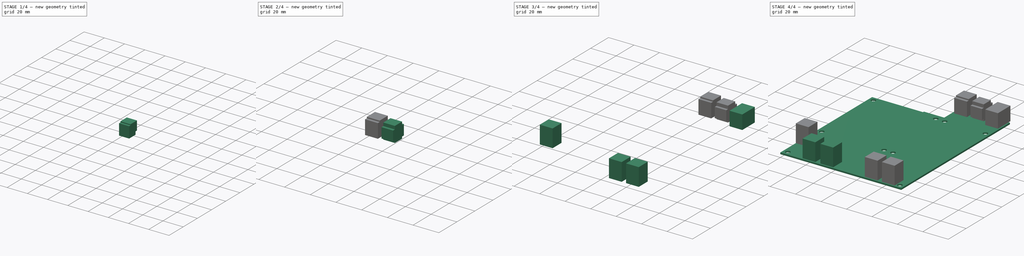
[diagram: build sequence overview — one tinted view per stage of 4, left to right]
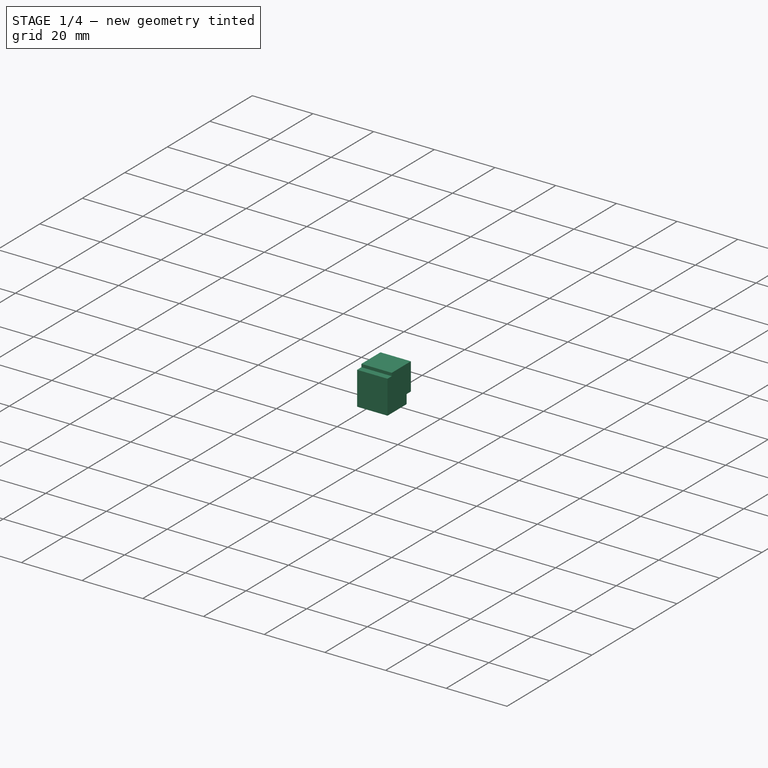
[diagram: stage 1 of 4 — iso view after this stage's code; geometry added in this stage tinted green]
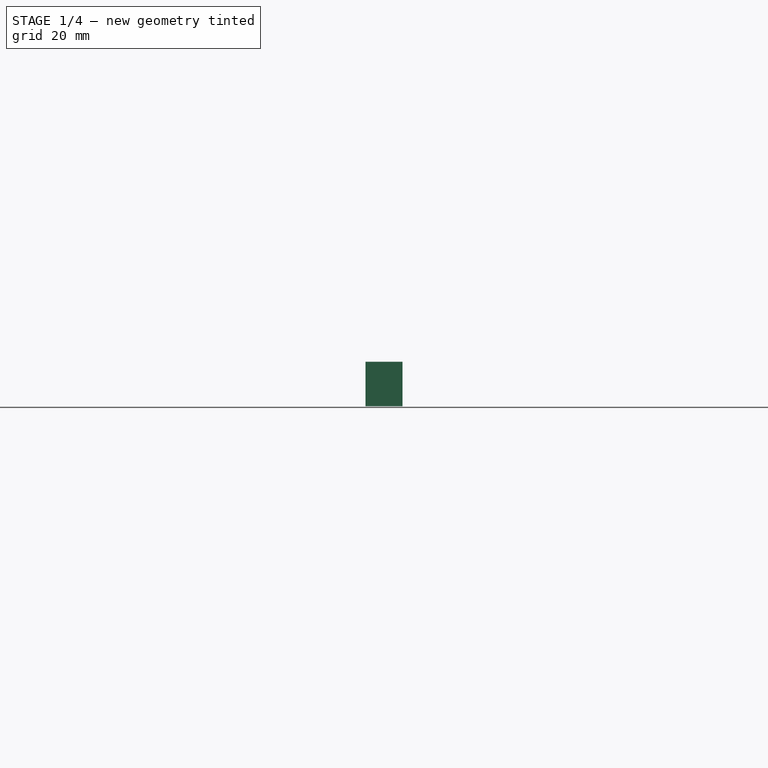
[diagram: stage 1 of 4 — front view after this stage's code; geometry added in this stage tinted green]
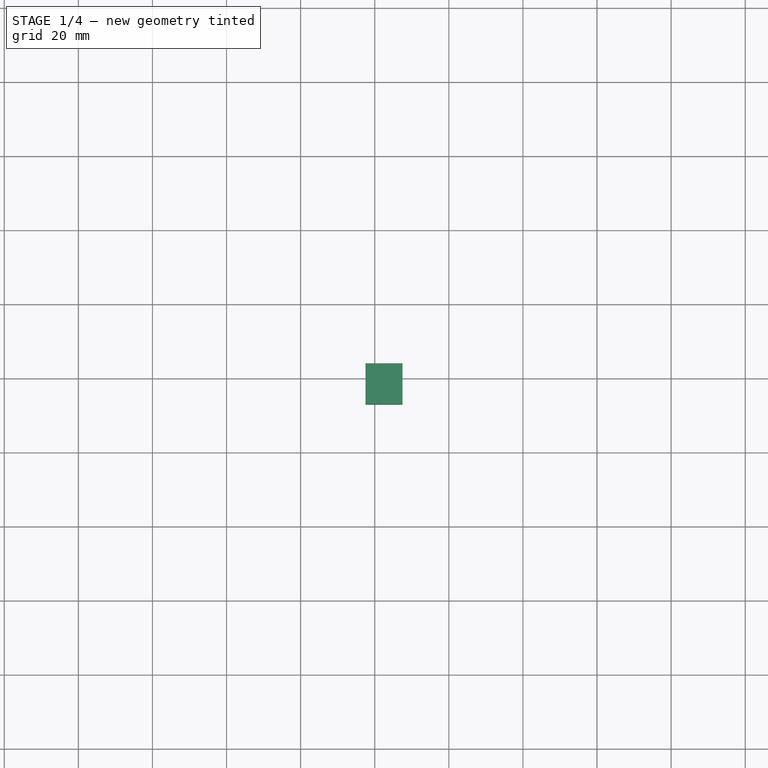
[diagram: stage 1 of 4 — top view after this stage's code; geometry added in this stage tinted green]
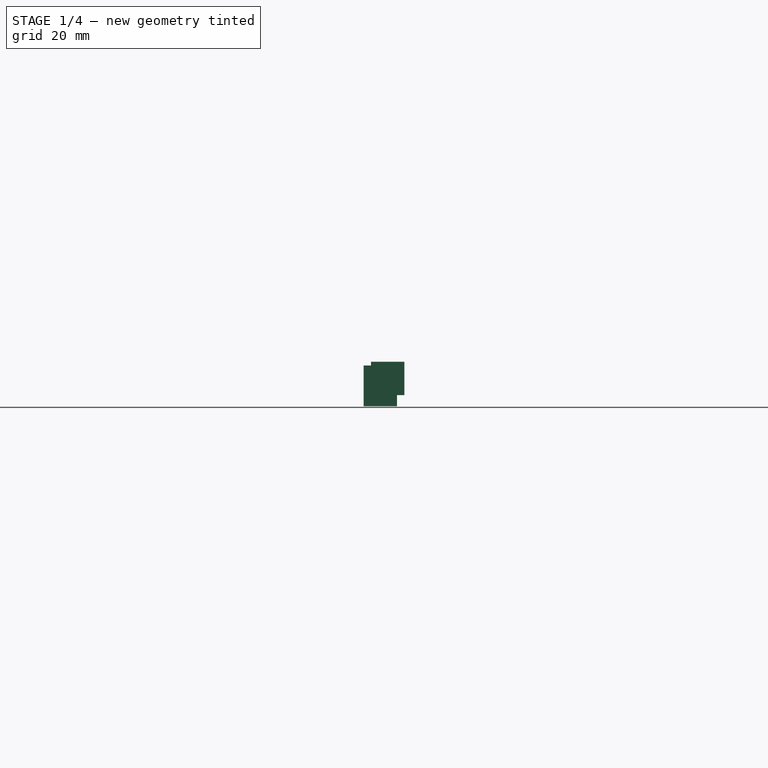
[diagram: stage 1 of 4 — right view after this stage's code; geometry added in this stage tinted green]
FCSTD DOCUMENT  (FreeCAD 0.16R6712 (Git))
Label: beocreate-board
License: All rights reserved
LicenseURL: http://en.wikipedia.org/wiki/All_rights_reserved
objects: Part::Box×10, Part::Fuse×2, Sketcher::SketchObject×1, PartDesign::Pad×1
note: 15 computed .brp shape members not serialized (recipe doc carries the construction recipe); baked Part::Feature solids carry a one-line shape summary decoded from their .brp

FEATURE [Part::Box] Box008  label="Würfel008"
  Height = 11
  Length = 10
  Width = 9
FEATURE [Part::Box] Box009  label="Würfel009"
  Height = 9
  Length = 10
  Placement = pos=(0,2,3) rot=(0,0,1;0rad)
  Width = 9
FEATURE [Part::Fuse] Fusion001  label="SPDIF1"
  Base = -> Box008
  Placement = pos=(57.5,113,0) rot=(0,0,1;0rad)
  Tool = -> Box009
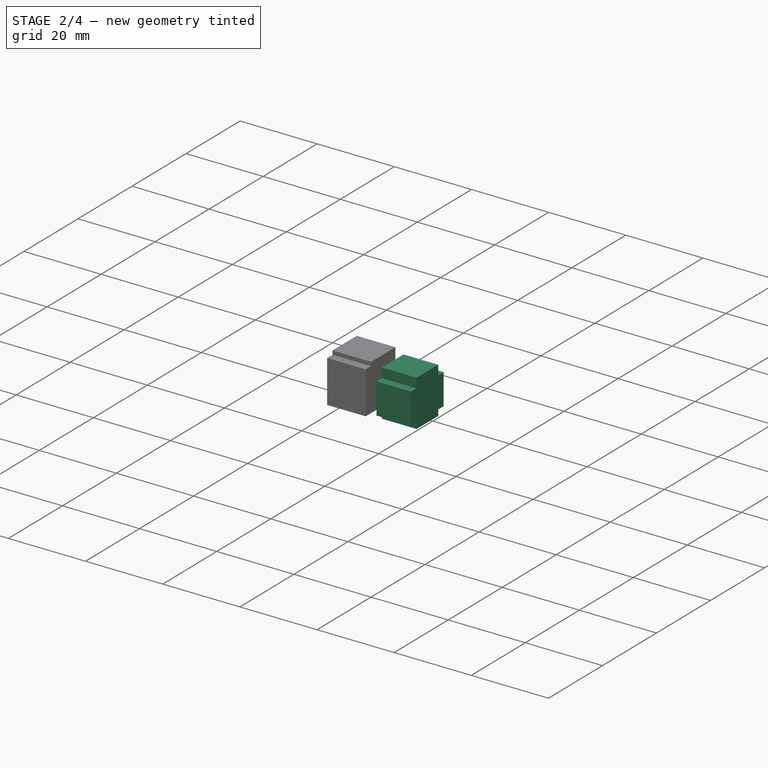
[diagram: stage 2 of 4 — iso view after this stage's code; geometry added in this stage tinted green]
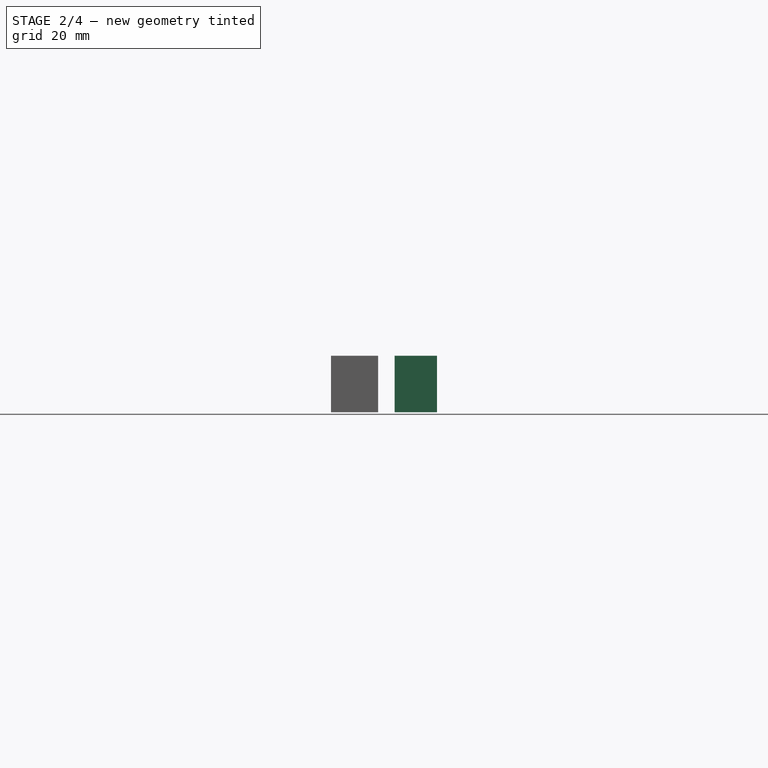
[diagram: stage 2 of 4 — front view after this stage's code; geometry added in this stage tinted green]
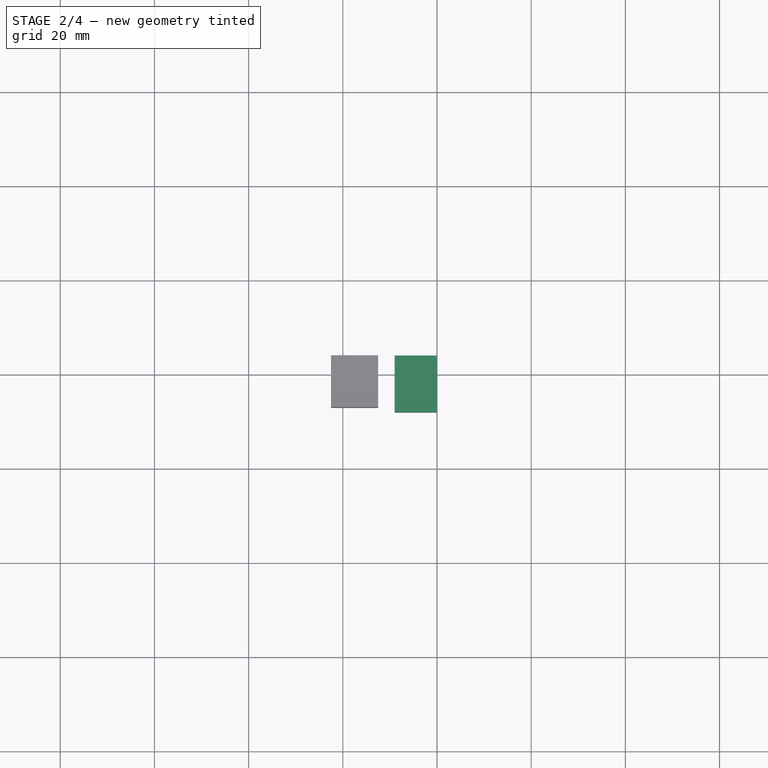
[diagram: stage 2 of 4 — top view after this stage's code; geometry added in this stage tinted green]
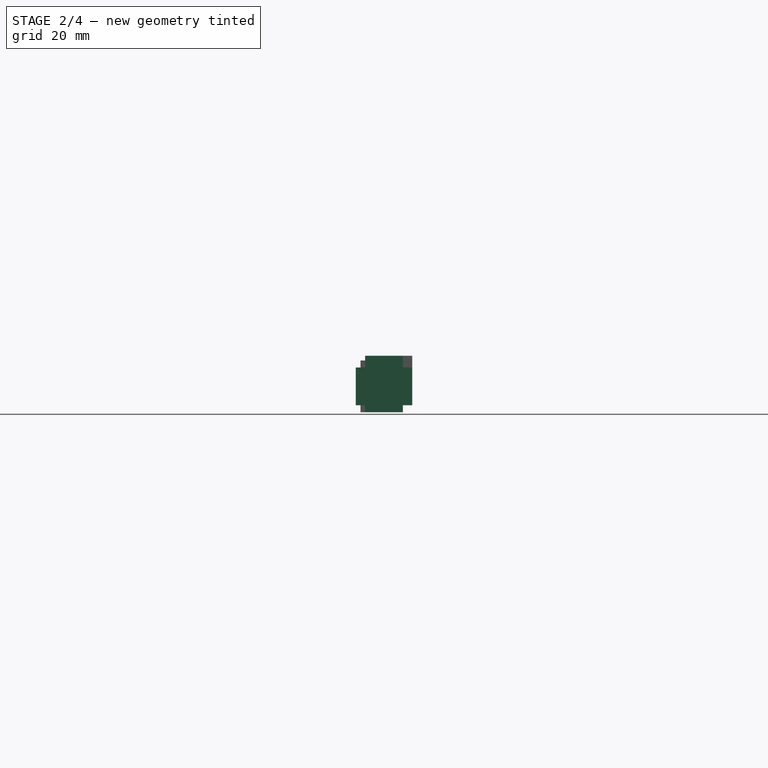
[diagram: stage 2 of 4 — right view after this stage's code; geometry added in this stage tinted green]
FEATURE [Part::Box] Box006  label="Würfel006"
  Height = 8
  Length = 9
  Placement = pos=(0,0,1.5) rot=(0,0,1;0rad)
  Width = 12
FEATURE [Part::Box] Box007  label="Würfel007"
  Height = 12
  Length = 9
  Placement = pos=(0,2,0) rot=(0,0,1;0rad)
  Width = 8
FEATURE [Part::Fuse] Fusion  label="SPDIF2"
  Base = -> Box006
  Placement = pos=(71,112,0) rot=(0,0,1;0rad)
  Tool = -> Box007
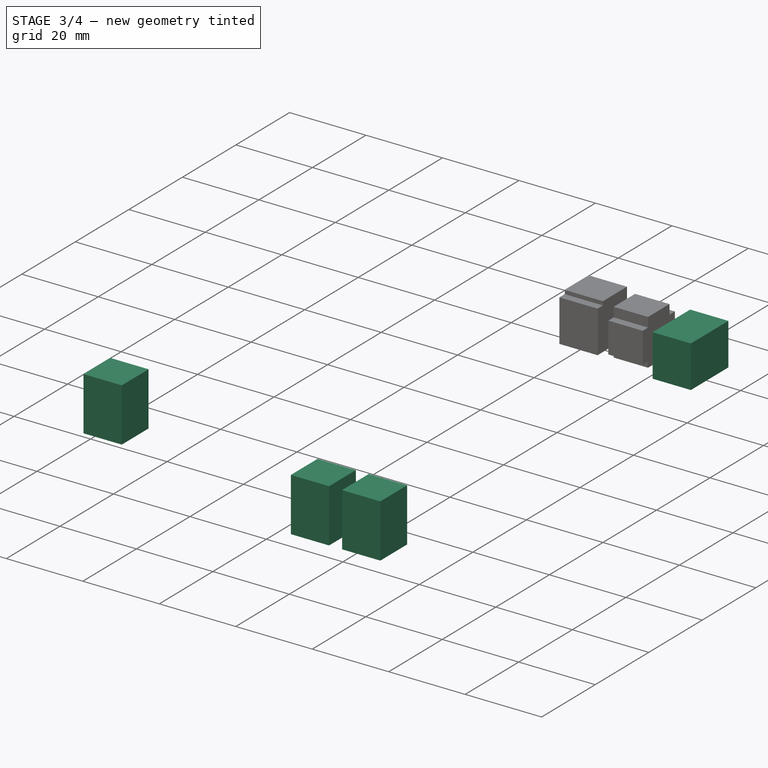
[diagram: stage 3 of 4 — iso view after this stage's code; geometry added in this stage tinted green]
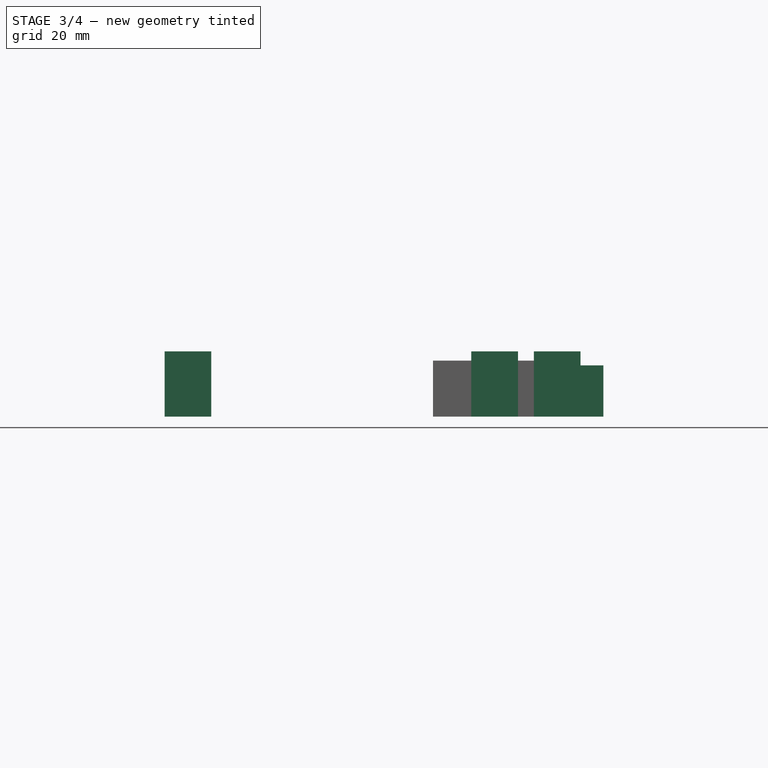
[diagram: stage 3 of 4 — front view after this stage's code; geometry added in this stage tinted green]
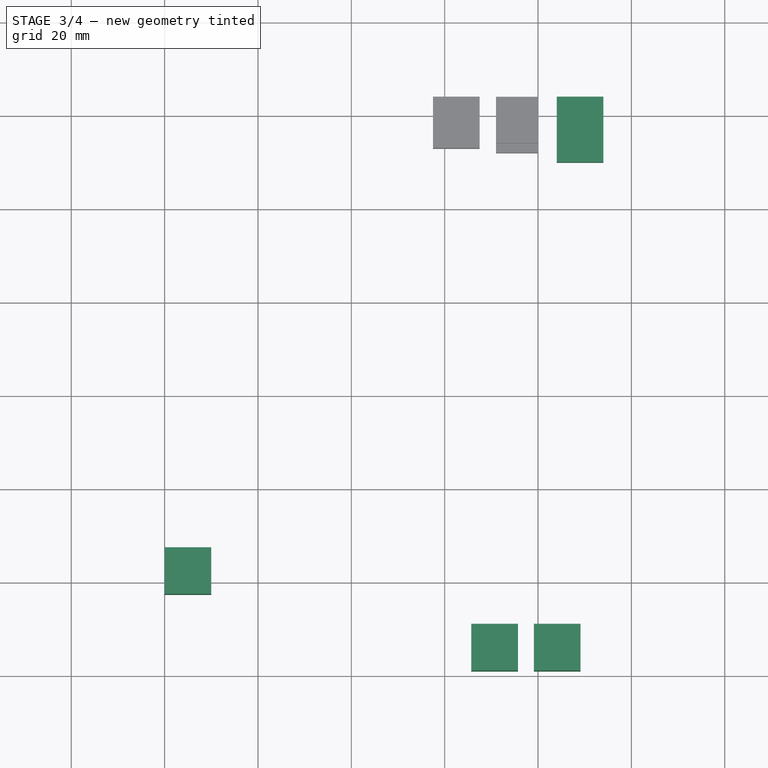
[diagram: stage 3 of 4 — top view after this stage's code; geometry added in this stage tinted green]
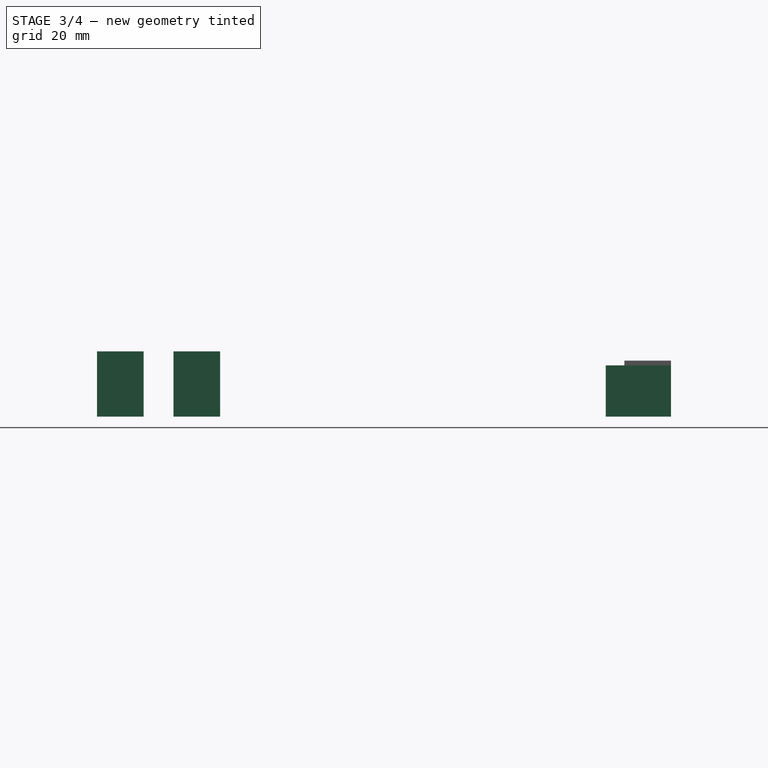
[diagram: stage 3 of 4 — right view after this stage's code; geometry added in this stage tinted green]
FEATURE [Part::Box] Box002  label="Speaker3"
  Height = 14
  Length = 10
  Placement = pos=(65.7,1,0) rot=(0,0,1;0rad)
  Width = 10
FEATURE [Part::Box] Box003  label="Speaker4"
  Height = 14
  Length = 10
  Placement = pos=(79.1,1,0) rot=(0,0,1;0rad)
  Width = 10
FEATURE [Part::Box] Box004  label="Power2"
  Height = 14
  Length = 10
  Placement = pos=(0,17.4,0) rot=(0,0,1;0rad)
  Width = 10
FEATURE [Part::Box] Box005  label="Power"
  Height = 11
  Length = 10
  Placement = pos=(84,110,0) rot=(0,0,1;0rad)
  Width = 14
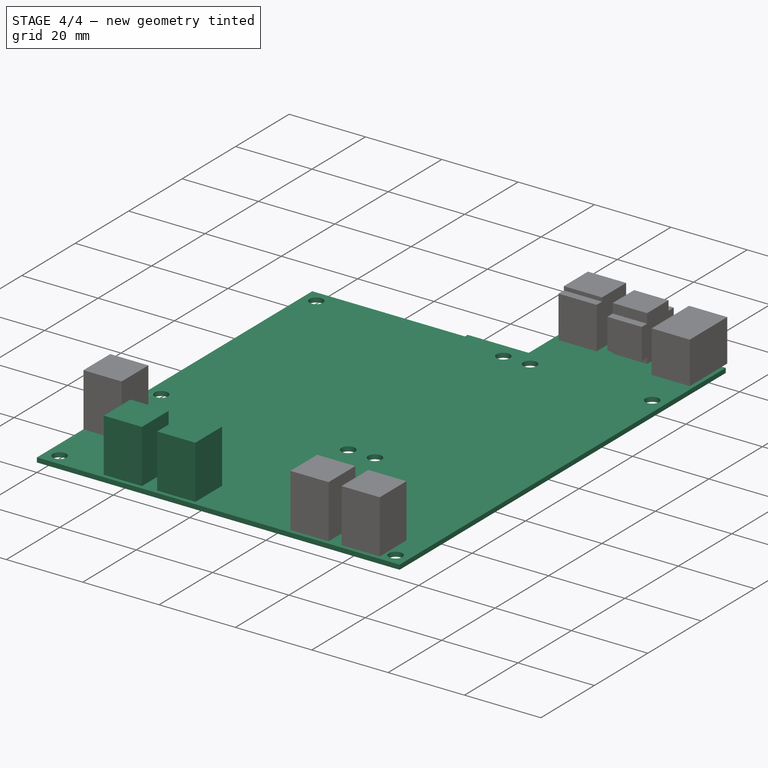
[diagram: stage 4 of 4 — iso view after this stage's code; geometry added in this stage tinted green]
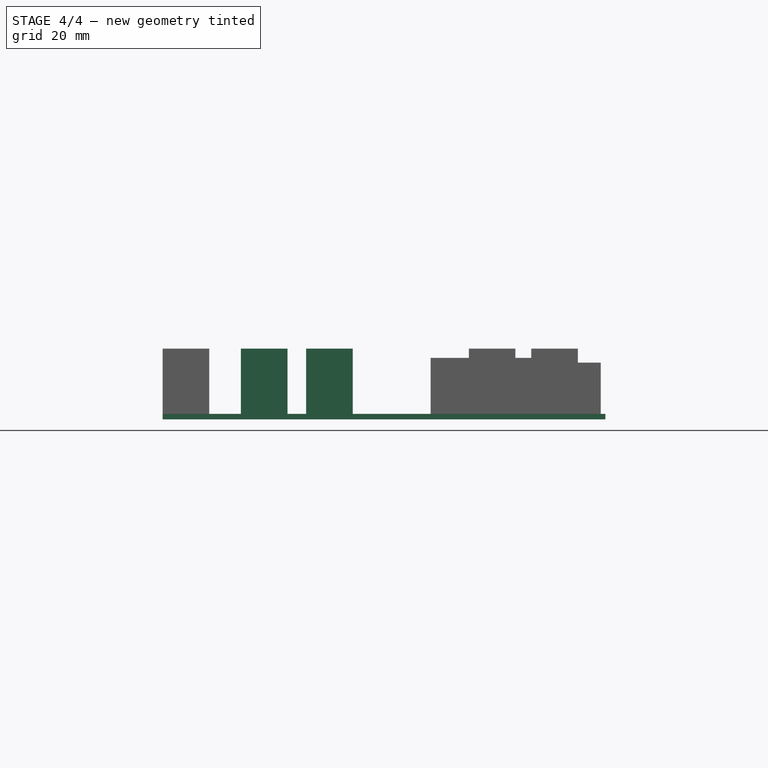
[diagram: stage 4 of 4 — front view after this stage's code; geometry added in this stage tinted green]
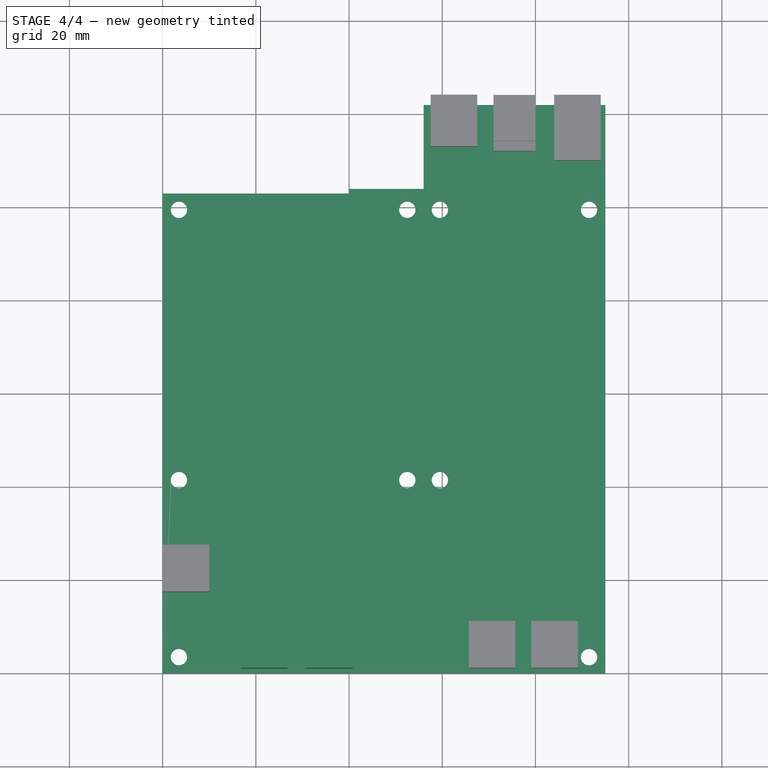
[diagram: stage 4 of 4 — top view after this stage's code; geometry added in this stage tinted green]
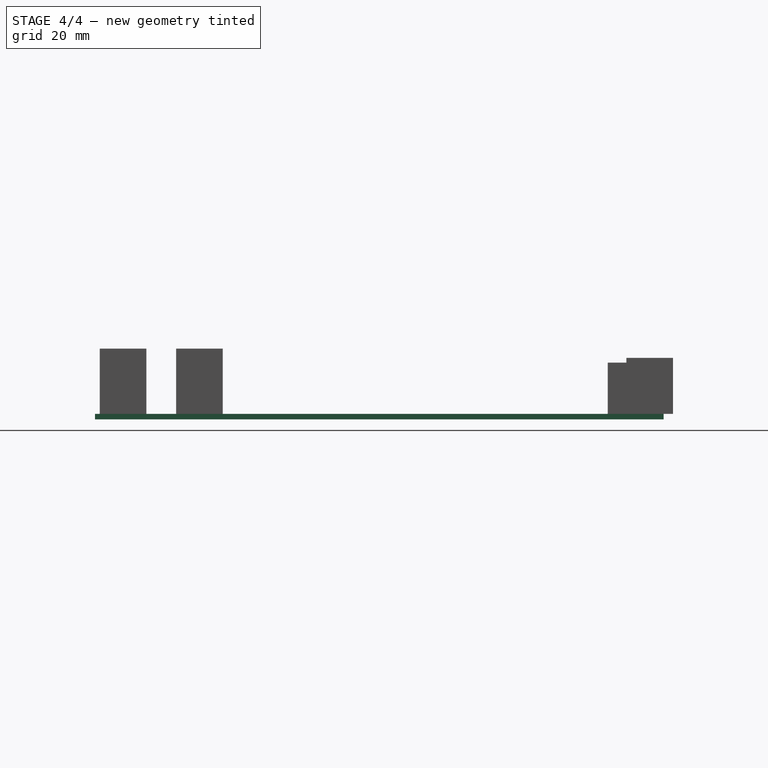
[diagram: stage 4 of 4 — right view after this stage's code; geometry added in this stage tinted green]
FEATURE [Sketcher::SketchObject] Sketch
  Placement = pos=(0,0,-1.2) rot=(0,0,1;0rad)
  sketch-geometry (17):
    g0: LineSegment StartX=0 StartY=0 StartZ=0 EndX=95 EndY=0 EndZ=0
    g1: LineSegment StartX=95 StartY=0 StartZ=0 EndX=95 EndY=122 EndZ=0
    g2: LineSegment StartX=95 StartY=122 StartZ=0 EndX=56 EndY=122 EndZ=0
    g3: LineSegment StartX=56 StartY=122 StartZ=0 EndX=56 EndY=104 EndZ=0
    g4: LineSegment StartX=56 StartY=104 StartZ=0 EndX=40 EndY=104 EndZ=0
    g5: LineSegment StartX=40 StartY=104 StartZ=0 EndX=40 EndY=103 EndZ=0
    g6: LineSegment StartX=40 StartY=103 StartZ=0 EndX=0 EndY=103 EndZ=0
    g7: LineSegment StartX=0 StartY=103 StartZ=0 EndX=0 EndY=0 EndZ=0
    g8: Circle CenterX=3.5 CenterY=99.5 CenterZ=0 NormalX=0 NormalY=0 NormalZ=1 Radius=1.75
    g9: Circle CenterX=3.5 CenterY=3.5 CenterZ=0 NormalX=0 NormalY=0 NormalZ=1 Radius=1.75
    g10: Circle CenterX=91.5 CenterY=3.5 CenterZ=0 NormalX=0 NormalY=0 NormalZ=1 Radius=1.75
    g11: Circle CenterX=52.5 CenterY=99.5 CenterZ=0 NormalX=0 NormalY=0 NormalZ=1 Radius=1.75
    g12: Circle CenterX=59.5 CenterY=99.5 CenterZ=0 NormalX=0 NormalY=0 NormalZ=1 Radius=1.75
    g13: Circle CenterX=91.5 CenterY=99.5 CenterZ=0 NormalX=0 NormalY=0 NormalZ=1 Radius=1.75
    g14: Circle CenterX=3.5 CenterY=41.5 CenterZ=0 NormalX=0 NormalY=0 NormalZ=1 Radius=1.75
    g15: Circle CenterX=52.5 CenterY=41.5 CenterZ=0 NormalX=0 NormalY=0 NormalZ=1 Radius=1.75
    g16: Circle CenterX=59.5 CenterY=41.5 CenterZ=0 NormalX=0 NormalY=0 NormalZ=1 Radius=1.75
  constraints (51):
    c: PointOnObject(g0,g-1)
    c: Horizontal(g0)
    c: Coincident(g0,g1)
    c: Vertical(g1)
    c: Coincident(g1,g2)
    c: Horizontal(g2)
    c: Coincident(g2,g3)
    c: Vertical(g3)
    c: Coincident(g3,g4)
    c: Horizontal(g4)
    c: Coincident(g4,g5)
    c: Coincident(g5,g6)
    c: PointOnObject(g6,g-2)
    c: Horizontal(g6)
    c: Coincident(g6,g7)
    c: Coincident(g7,g-1)
    c: Coincident(g0,g-1)
    c: DistanceX(g0,g0) = 95
    c: DistanceY(g7,g7) = 103
    c: DistanceY(g5,g5) = -1
    c: Vertical(g5)
    c: DistanceX(g6,g6) = 40
    c: DistanceX(g2,g2) = 39
    c: DistanceY(g1,g1) = 122
    c: Radius(g8) = 1.75
    c: DistanceY(g8,g6) = 3.5
    c: DistanceX(g6,g8) = 3.5
    c: Radius(g11) = 1.75
    c: Radius(g12) = 1.75
    c: Equal(g12,g13)
    c: Equal(g12,g16)
    c: Equal(g12,g15)
    c: Equal(g12,g14)
    c: Equal(g12,g9)
    c: Equal(g12,g10)
    c: DistanceY(g11,g8) = 0
    c: DistanceY(g12,g11) = 0
    c: DistanceY(g13,g12) = 0
    c: DistanceY(g15,g14) = 0
    c: DistanceY(g15,g16) = 0
    c: DistanceX(g15,g11) = 0
    c: DistanceX(g8,g9) = 0
    c: DistanceX(g16,g12) = 0
    c: DistanceX(g13,g10) = 0
    c: DistanceX(g9,g10) = 88
    c: DistanceX(g14,g15) = 49
    c: DistanceX(g15,g16) = 7
    c: DistanceX(g14,g8) = 0
    c: DistanceY(g9,g10) = 0
    c: DistanceY(g-1,g9) = 3.5
    c: DistanceY(g14,g8) = 58
FEATURE [PartDesign::Pad] Pad
  Length = 1.2
  Length2 = 100
  Placement = pos=(0,0,-1.2) rot=(0,0,1;0rad)
  Sketch = -> Sketch
  Type = 0
FEATURE [Part::Box] Box  label="Speaker1"
  Height = 14
  Length = 10
  Placement = pos=(16.8,1,0) rot=(0,0,1;0rad)
  Width = 10
FEATURE [Part::Box] Box001  label="Speaker2"
  Height = 14
  Length = 10
  Placement = pos=(30.8,1,0) rot=(0,0,1;0rad)
  Width = 10
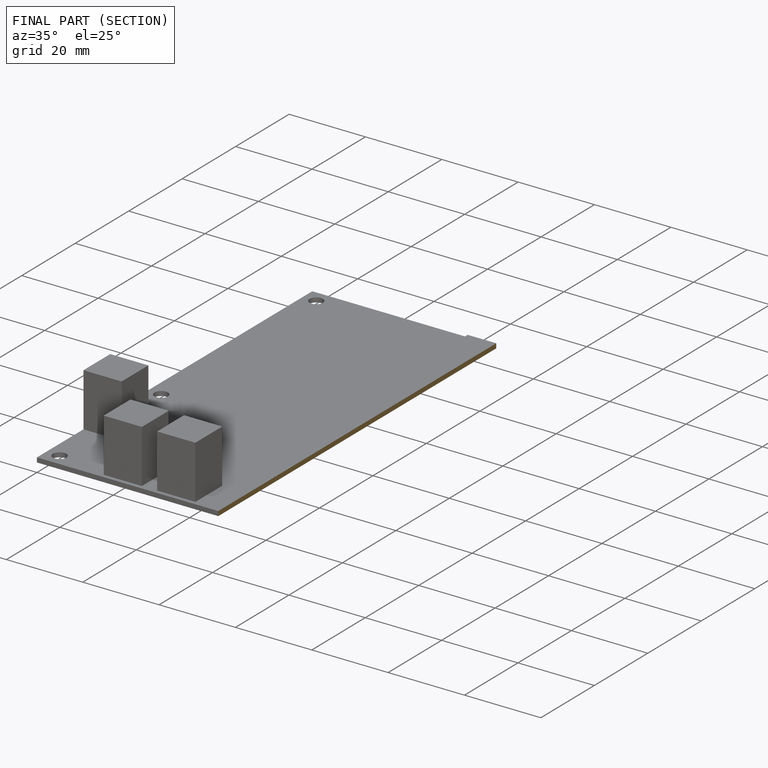
[diagram: finished part — half-section view (interior)]
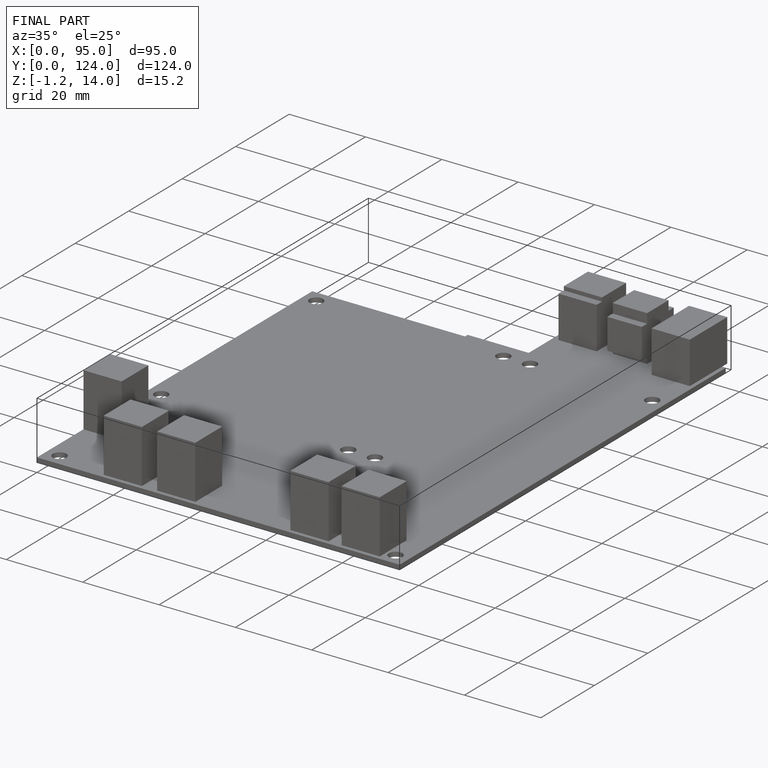
[diagram: finished part — iso view with bounding-box wireframe]
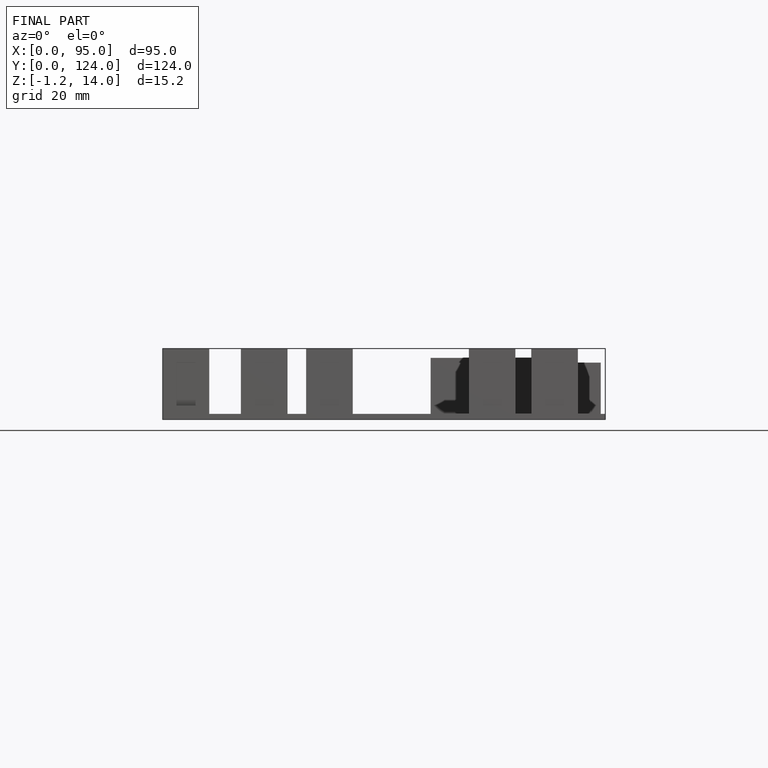
[diagram: finished part — front view with bounding-box wireframe]
